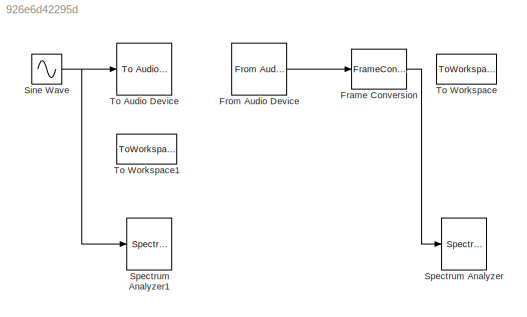
MODEL slx_926e6d42295d
KIND model
BLOCK [FrameConversion] Frame Conversion
  OutFrame = Sample-based
  Ports = [1, 1]
BLOCK [Reference] From Audio Device  REF=dspsrcs4/From Audio
Device
  Ports = [0, 1]
  SourceBlock = dspsrcs4/From Audio\nDevice
  SourceType = From Audio Device
  autoBufferSize = off
  bufferSize = 256
  defaultInputChannelMapping = on
  deviceDatatype = 24-bit integer
  deviceName = Default
  frameSize = 1
  inputChannelMapping = 1:2
  numChannels = 1
  outputDatatype = double
  queueDuration = 1
  sampleRate = 44100
BLOCK [Sin] Sine Wave
  Frequency = 2*pi*freq
  Ports = [0, 1]
BLOCK [SpectrumAnalyzer] Spectrum Analyzer
  Ports = [1]
BLOCK [SpectrumAnalyzer] Spectrum Analyzer1
  Ports = [1]
BLOCK [Reference] To Audio Device  REF=dspsnks4/To Audio
Device
  Ports = [1]
  SourceBlock = dspsnks4/To Audio\nDevice
  SourceType = To Audio Device
  autoBufferSize = off
  bufferSize = 256
  defaultOutputChannelMapping = on
  deviceDatatype = Determine from input data type
  deviceName = Default
  inheritSampleRate = off
  outputChannelMapping = 1:2
  queueDuration = 1
  sampleRate = 44100
BLOCK [ToWorkspace] To Workspace
  FixptAsFi = on
  MaxDataPoints = inf
  Ports = [1]
  SampleTime = -1
  Save2DSignal = 3-D array (concatenate along third dimension)
  SaveFormat = Structure With Time
  VariableName = systemout
BLOCK [ToWorkspace] To Workspace1
  FixptAsFi = on
  MaxDataPoints = inf
  Ports = [1]
  SampleTime = -1
  Save2DSignal = 3-D array (concatenate along third dimension)
  SaveFormat = Structure With Time
  VariableName = systemin
LINE Frame Conversion:1 -> Spectrum Analyzer:1
LINE From Audio Device:1 -> Frame Conversion:1
NET Sine Wave:1 -> Spectrum Analyzer1:1, To Audio Device:1
note: NET lines group one-source signal fan-out (src -> all destinations, sorted); 1:1 wires keep LINE
